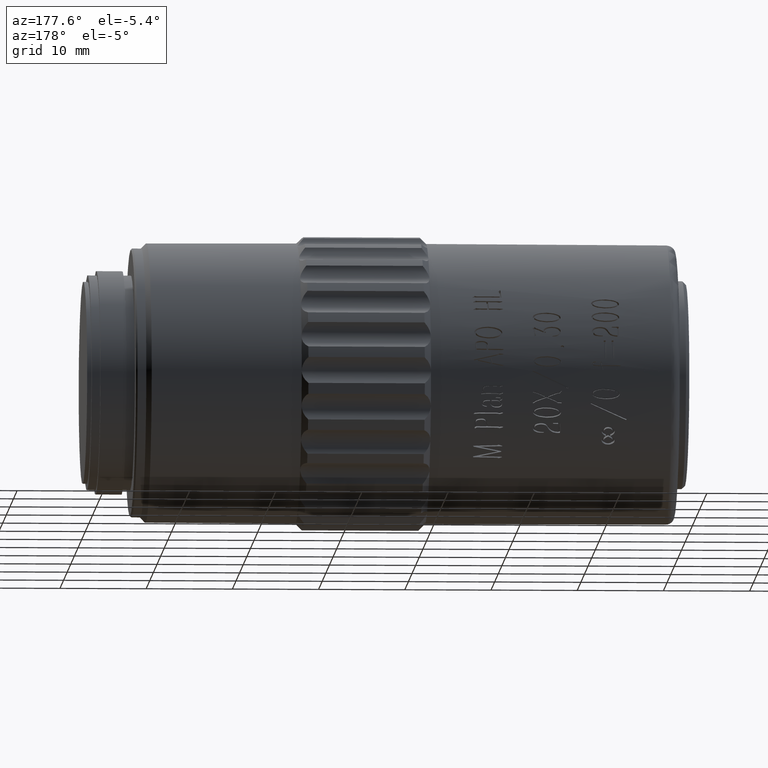
[diagram: clean part render]
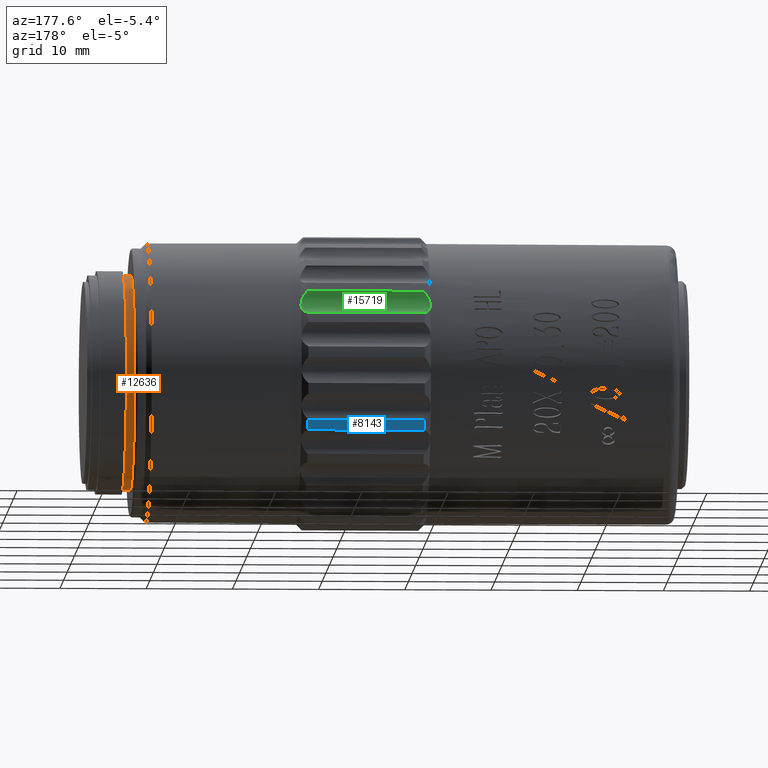
[diagram: same view with three faces highlighted in distinct colors, each labeled with its STEP entity id]
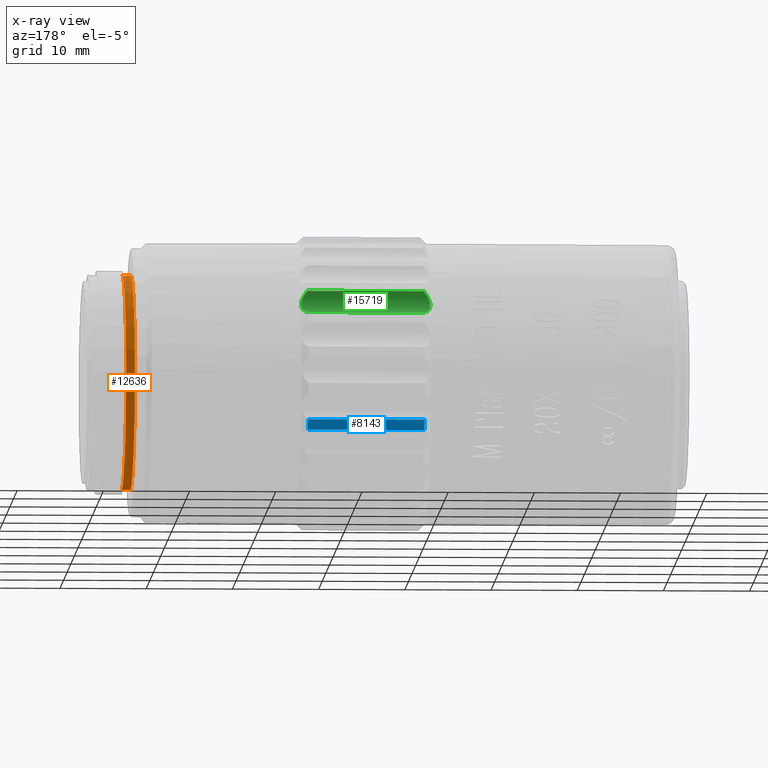
[diagram: x-ray of the same camera — body ghosted, the three highlighted faces saturated]
A machine part, auxiliary view with three faces highlighted in distinct colors.
The next image is the same camera in x-ray (body ghosted, the three faces saturated) — at least one of them is partly hidden behind the body in this view.
Their STEP definitions:

[orange] entity #12636 — the highlighted cylindrical surface (partial cylindrical patch) has radius 12.5 mm, axis along (-1, -0, -0).
#1095 = VECTOR ( 'NONE', #37534, 1000.000000000000000 ) ;
#3508 = DIRECTION ( 'NONE',  ( 0.000000000000000000, 0.000000000000000000, 1.000000000000000000 ) ) ;
#4817 = DIRECTION ( 'NONE',  ( 0.000000000000000000, 0.000000000000000000, 1.000000000000000000 ) ) ;
#6011 = VERTEX_POINT ( 'NONE', #8881 ) ;
#8704 = CIRCLE ( 'NONE', #37078, 12.50000000000000000 ) ;
#8881 = CARTESIAN_POINT ( 'NONE',  ( 64.34999999999999432, 1.530808498934191521E-15, -12.50000000000000000 ) ) ;
#9200 = LINE ( 'NONE', #26135, #16306 ) ;
#11883 = VERTEX_POINT ( 'NONE', #26259 ) ;
#12636 = ADVANCED_FACE ( 'NONE', ( #34538 ), #43140, .T. ) ;
#16306 = VECTOR ( 'NONE', #26406, 1000.000000000000000 ) ;
#17032 = DIRECTION ( 'NONE',  ( -1.000000000000000000, -0.000000000000000000, -0.000000000000000000 ) ) ;
#20282 = EDGE_CURVE ( 'NONE', #11883, #49227, #8704, .T. ) ;
#24292 = CARTESIAN_POINT ( 'NONE',  ( 65.34999999999999432, 1.530808498934191521E-15, -12.50000000000000000 ) ) ;
#24724 = ORIENTED_EDGE ( 'NONE', *, *, #50619, .T. ) ;
#25632 = EDGE_LOOP ( 'NONE', ( #47803, #24724, #36643, #41115 ) ) ;
#26135 = CARTESIAN_POINT ( 'NONE',  ( 0.000000000000000000, 0.000000000000000000, 12.50000000000000000 ) ) ;
#26259 = CARTESIAN_POINT ( 'NONE',  ( 65.34999999999999432, 0.000000000000000000, 12.50000000000000000 ) ) ;
#26406 = DIRECTION ( 'NONE',  ( -1.000000000000000000, -0.000000000000000000, -0.000000000000000000 ) ) ;
#28765 = CARTESIAN_POINT ( 'NONE',  ( 65.34999999999999432, 0.000000000000000000, 0.000000000000000000 ) ) ;
#28857 = AXIS2_PLACEMENT_3D ( 'NONE', #35344, #35077, #34803 ) ;
#28941 = LINE ( 'NONE', #46136, #1095 ) ;
#30342 = AXIS2_PLACEMENT_3D ( 'NONE', #45926, #17032, #4817 ) ;
#31416 = EDGE_CURVE ( 'NONE', #11883, #38383, #9200, .T. ) ;
#34538 = FACE_OUTER_BOUND ( 'NONE', #25632, .T. ) ;
#34803 = DIRECTION ( 'NONE',  ( 0.000000000000000000, 0.000000000000000000, 1.000000000000000000 ) ) ;
#35077 = DIRECTION ( 'NONE',  ( -1.000000000000000000, -0.000000000000000000, -0.000000000000000000 ) ) ;
#35344 = CARTESIAN_POINT ( 'NONE',  ( 0.000000000000000000, 0.000000000000000000, 0.000000000000000000 ) ) ;
#36643 = ORIENTED_EDGE ( 'NONE', *, *, #50397, .F. ) ;
#37078 = AXIS2_PLACEMENT_3D ( 'NONE', #28765, #37632, #3508 ) ;
#37254 = CARTESIAN_POINT ( 'NONE',  ( 64.34999999999999432, 0.000000000000000000, 12.50000000000000000 ) ) ;
#37534 = DIRECTION ( 'NONE',  ( -1.000000000000000000, -0.000000000000000000, -0.000000000000000000 ) ) ;
#37632 = DIRECTION ( 'NONE',  ( -1.000000000000000000, -0.000000000000000000, -0.000000000000000000 ) ) ;
#38383 = VERTEX_POINT ( 'NONE', #37254 ) ;
#41115 = ORIENTED_EDGE ( 'NONE', *, *, #31416, .F. ) ;
#43140 = CYLINDRICAL_SURFACE ( 'NONE', #28857, 12.50000000000000000 ) ;
#45926 = CARTESIAN_POINT ( 'NONE',  ( 64.34999999999999432, 0.000000000000000000, 0.000000000000000000 ) ) ;
#46136 = CARTESIAN_POINT ( 'NONE',  ( 0.000000000000000000, 1.530808498934191521E-15, -12.50000000000000000 ) ) ;
#46304 = CIRCLE ( 'NONE', #30342, 12.50000000000000000 ) ;
#47803 = ORIENTED_EDGE ( 'NONE', *, *, #20282, .T. ) ;
#49227 = VERTEX_POINT ( 'NONE', #24292 ) ;
#50397 = EDGE_CURVE ( 'NONE', #38383, #6011, #46304, .T. ) ;
#50619 = EDGE_CURVE ( 'NONE', #49227, #6011, #28941, .T. ) ;

[blue] entity #8143 — the highlighted cylindrical surface (partial cylindrical patch) has radius 17 mm, axis along (-1, -0, -0).
#1263 = CARTESIAN_POINT ( 'NONE',  ( 0.000000000000000000, 0.000000000000000000, 0.000000000000000000 ) ) ;
#3140 = CIRCLE ( 'NONE', #34163, 17.00000000000000000 ) ;
#5213 = EDGE_CURVE ( 'NONE', #10623, #9184, #49495, .T. ) ;
#8143 = ADVANCED_FACE ( 'NONE', ( #43193 ), #39285, .T. ) ;
#8567 = VECTOR ( 'NONE', #15375, 1000.000000000000000 ) ;
#8874 = DIRECTION ( 'NONE',  ( 0.000000000000000000, 0.000000000000000000, -1.000000000000000000 ) ) ;
#9184 = VERTEX_POINT ( 'NONE', #13002 ) ;
#9412 = CARTESIAN_POINT ( 'NONE',  ( 44.40000000000000568, 0.000000000000000000, 0.000000000000000000 ) ) ;
#10623 = VERTEX_POINT ( 'NONE', #35854 ) ;
#13002 = CARTESIAN_POINT ( 'NONE',  ( 44.40000000000000568, 15.56390251696602434, -6.838489485433075110 ) ) ;
#13030 = DIRECTION ( 'NONE',  ( 0.000000000000000000, 0.000000000000000000, 1.000000000000000000 ) ) ;
#13570 = CARTESIAN_POINT ( 'NONE',  ( 30.89999999999995595, 0.000000000000000000, 0.000000000000000000 ) ) ;
#15375 = DIRECTION ( 'NONE',  ( 1.000000000000000000, 0.000000000000000000, 0.000000000000000000 ) ) ;
#16135 = EDGE_CURVE ( 'NONE', #30337, #9184, #3140, .T. ) ;
#18188 = DIRECTION ( 'NONE',  ( 0.000000000000000000, 0.000000000000000000, 1.000000000000000000 ) ) ;
#18966 = AXIS2_PLACEMENT_3D ( 'NONE', #13570, #26345, #8874 ) ;
#19181 = ORIENTED_EDGE ( 'NONE', *, *, #5213, .F. ) ;
#19207 = ORIENTED_EDGE ( 'NONE', *, *, #32280, .T. ) ;
#25167 = CARTESIAN_POINT ( 'NONE',  ( 37.64999999999998437, 16.02686484129037581, -5.669180131113363608 ) ) ;
#26345 = DIRECTION ( 'NONE',  ( 1.000000000000000000, 0.000000000000000000, 0.000000000000000000 ) ) ;
#28102 = EDGE_LOOP ( 'NONE', ( #52359, #19181, #19207, #32403 ) ) ;
#30337 = VERTEX_POINT ( 'NONE', #32584 ) ;
#32280 = EDGE_CURVE ( 'NONE', #10623, #46850, #33204, .T. ) ;
#32403 = ORIENTED_EDGE ( 'NONE', *, *, #50985, .F. ) ;
#32584 = CARTESIAN_POINT ( 'NONE',  ( 44.40000000000000568, 16.02686484129037581, -5.669180131113363608 ) ) ;
#32958 = LINE ( 'NONE', #25167, #41884 ) ;
#33204 = CIRCLE ( 'NONE', #18966, 17.00000000000000000 ) ;
#33513 = DIRECTION ( 'NONE',  ( -1.000000000000000000, -0.000000000000000000, -0.000000000000000000 ) ) ;
#34163 = AXIS2_PLACEMENT_3D ( 'NONE', #9412, #51036, #13030 ) ;
#34482 = AXIS2_PLACEMENT_3D ( 'NONE', #1263, #46526, #18188 ) ;
#35854 = CARTESIAN_POINT ( 'NONE',  ( 30.89999999999995595, 15.56390251696602434, -6.838489485433075110 ) ) ;
#36194 = CARTESIAN_POINT ( 'NONE',  ( 37.64999999999998437, 15.56390251696602434, -6.838489485433075110 ) ) ;
#39285 = CYLINDRICAL_SURFACE ( 'NONE', #34482, 17.00000000000000000 ) ;
#41884 = VECTOR ( 'NONE', #33513, 1000.000000000000000 ) ;
#43193 = FACE_OUTER_BOUND ( 'NONE', #28102, .T. ) ;
#46526 = DIRECTION ( 'NONE',  ( -1.000000000000000000, -0.000000000000000000, -0.000000000000000000 ) ) ;
#46850 = VERTEX_POINT ( 'NONE', #53648 ) ;
#49495 = LINE ( 'NONE', #36194, #8567 ) ;
#50985 = EDGE_CURVE ( 'NONE', #30337, #46850, #32958, .T. ) ;
#51036 = DIRECTION ( 'NONE',  ( -1.000000000000000000, -0.000000000000000000, -0.000000000000000000 ) ) ;
#52359 = ORIENTED_EDGE ( 'NONE', *, *, #16135, .T. ) ;
#53648 = CARTESIAN_POINT ( 'NONE',  ( 30.89999999999995950, 16.02686484129037581, -5.669180131113361831 ) ) ;

[green] entity #15719 — the highlighted cylindrical surface (edge-blend (fillet) strip) has radius 2 mm, axis along (-1, -0, -0).
#721 = ORIENTED_EDGE ( 'NONE', *, *, #39495, .T. ) ;
#968 = CARTESIAN_POINT ( 'NONE',  ( 30.25172196527415025, 14.61598692441996405, 7.333056607371934099 ) ) ;
#1455 = VERTEX_POINT ( 'NONE', #33199 ) ;
#1488 = CARTESIAN_POINT ( 'NONE',  ( 30.44838355598266944, 13.98820631081956023, 8.842761138807361476 ) ) ;
#3236 = CARTESIAN_POINT ( 'NONE',  ( 44.78236023278924449, 13.98168566391420953, 8.984426704125711538 ) ) ;
#3251 = VECTOR ( 'NONE', #18827, 1000.000000000000000 ) ;
#4084 = ORIENTED_EDGE ( 'NONE', *, *, #51285, .F. ) ;
#4149 = VECTOR ( 'NONE', #22940, 1000.000000000000000 ) ;
#4319 = EDGE_LOOP ( 'NONE', ( #4457, #721, #12654, #43930, #51743, #4084 ) ) ;
#4457 = ORIENTED_EDGE ( 'NONE', *, *, #5509, .T. ) ;
#4588 = CARTESIAN_POINT ( 'NONE',  ( 30.89999999999995595, 15.56390251696572768, 6.838489485433750126 ) ) ;
#4784 = VERTEX_POINT ( 'NONE', #54251 ) ;
#5509 = EDGE_CURVE ( 'NONE', #46188, #16490, #10176, .T. ) ;
#6182 = CARTESIAN_POINT ( 'NONE',  ( 30.53024158241526820, 13.99723072883888442, 8.980637347960309214 ) ) ;
#7846 = CARTESIAN_POINT ( 'NONE',  ( 45.14999999999937330, 14.23998355071341493, 7.828497204153050504 ) ) ;
#8747 = CARTESIAN_POINT ( 'NONE',  ( 30.80006460241129318, 15.44309783918687451, 6.864999794460682203 ) ) ;
#8926 = CARTESIAN_POINT ( 'NONE',  ( 44.49993512940091733, 15.44309816337967156, 6.864999723317317226 ) ) ;
#9013 = CARTESIAN_POINT ( 'NONE',  ( 30.44838345473214858, 14.96144577509835116, 7.072444934390988536 ) ) ;
#9609 = CARTESIAN_POINT ( 'NONE',  ( 69.85099999999999909, 15.99259691080115076, 8.792004552356470271 ) ) ;
#10176 = LINE ( 'NONE', #27120, #4149 ) ;
#10987 = CARTESIAN_POINT ( 'NONE',  ( 45.04856986107691341, 14.02331324929055256, 8.410583665831602218 ) ) ;
#12009 = CARTESIAN_POINT ( 'NONE',  ( 44.40000000000000568, 15.56390251696572768, 6.838489485433750126 ) ) ;
#12654 = ORIENTED_EDGE ( 'NONE', *, *, #17746, .F. ) ;
#12826 = CARTESIAN_POINT ( 'NONE',  ( 44.99040941542482130, 14.72887031556890847, 7.235356550762840122 ) ) ;
#14137 = CARTESIAN_POINT ( 'NONE',  ( 45.14999999999937330, 14.23998355071341493, 7.828497204153050504 ) ) ;
#14232 = CARTESIAN_POINT ( 'NONE',  ( 30.70560827549601512, 14.03872687638715178, 9.238614471989940569 ) ) ;
#14671 = LINE ( 'NONE', #31609, #3251 ) ;
#15719 = ADVANCED_FACE ( 'NONE', ( #52853 ), #30720, .F. ) ;
#15723 = CARTESIAN_POINT ( 'NONE',  ( 45.14999999999937330, 14.23998355071341493, 7.828497204153050504 ) ) ;
#16490 = VERTEX_POINT ( 'NONE', #29098 ) ;
#17248 = CARTESIAN_POINT ( 'NONE',  ( 44.85161644401730996, 14.96144592307057408, 7.072444856136250735 ) ) ;
#17746 = EDGE_CURVE ( 'NONE', #1455, #4784, #29088, .T. ) ;
#18140 = CARTESIAN_POINT ( 'NONE',  ( 30.15000000000059899, 14.16358039854744000, 7.967474022013962376 ) ) ;
#18179 = AXIS2_PLACEMENT_3D ( 'NONE', #9609, #26545, #52045 ) ;
#18827 = DIRECTION ( 'NONE',  ( 1.000000000000000000, 0.000000000000000000, 0.000000000000000000 ) ) ;
#20620 = CARTESIAN_POINT ( 'NONE',  ( 44.40000000000000568, 14.11348364383507459, 9.476791621387478770 ) ) ;
#20975 = CARTESIAN_POINT ( 'NONE',  ( 30.70560791303378778, 15.32274574458810079, 6.902992129051550130 ) ) ;
#22289 = CARTESIAN_POINT ( 'NONE',  ( 30.17166185667321088, 14.10433124392908333, 8.115220355231823390 ) ) ;
#22940 = DIRECTION ( 'NONE',  ( -1.000000000000000000, -0.000000000000000000, -0.000000000000000000 ) ) ;
#23491 = CARTESIAN_POINT ( 'NONE',  ( 44.59987124278716664, 14.02878947598808601, 9.244383707112556081 ) ) ;
#23765 = CARTESIAN_POINT ( 'NONE',  ( 44.40000000000000568, 14.11348364383507459, 9.476791621387478770 ) ) ;
#24307 = CARTESIAN_POINT ( 'NONE',  ( 45.12845809732149860, 14.10457814217970274, 8.114549637618098998 ) ) ;
#25406 = CARTESIAN_POINT ( 'NONE',  ( 30.15000000000059543, 14.31638684488099855, 7.689520127992203413 ) ) ;
#25586 = CARTESIAN_POINT ( 'NONE',  ( 45.12833814332676496, 14.40938577328134684, 7.560328226287521325 ) ) ;
#25949 = CARTESIAN_POINT ( 'NONE',  ( 30.17166177108860126, 14.40938553874607031, 7.560328494224916263 ) ) ;
#26545 = DIRECTION ( 'NONE',  ( -1.000000000000000000, -0.000000000000000000, -0.000000000000000000 ) ) ;
#26743 = CARTESIAN_POINT ( 'NONE',  ( 30.80006487059906206, 14.07113676839034433, 9.360588236333272860 ) ) ;
#27024 = EDGE_CURVE ( 'NONE', #1455, #42345, #14671, .T. ) ;
#27120 = CARTESIAN_POINT ( 'NONE',  ( 37.64999999999998437, 15.56390251696572768, 6.838489485433750126 ) ) ;
#27147 = B_SPLINE_CURVE_WITH_KNOTS ( 'NONE', 3,
 ( #15723, #41257, #24307, #10987, #45143, #3236, #23491, #23765 ),
 .UNSPECIFIED., .F., .F.,
 ( 4, 2, 2, 4 ),
 ( 0.001887648531582153313, 0.002358882472447882978, 0.002830116413313612210, 0.003772584295045071107 ),
 .UNSPECIFIED. ) ;
#27509 = VERTEX_POINT ( 'NONE', #14137 ) ;
#27839 = CARTESIAN_POINT ( 'NONE',  ( 30.30959058457517941, 14.00113696162572019, 8.559098607406763648 ) ) ;
#28950 = CARTESIAN_POINT ( 'NONE',  ( 44.59439172450396427, 15.32274621940829995, 6.902991957656132271 ) ) ;
#29088 = B_SPLINE_CURVE_WITH_KNOTS ( 'NONE', 3,
 ( #35606, #26743, #14232, #6182, #1488, #27839, #44766, #22289, #18140, #52776 ),
 .UNSPECIFIED., .F., .F.,
 ( 4, 2, 2, 2, 4 ),
 ( 3.147481219582943737E-07, 0.0004721481939869839536, 0.0009439816398520096876, 0.001415815085717035205, 0.001887648531582060939 ),
 .UNSPECIFIED. ) ;
#29098 = CARTESIAN_POINT ( 'NONE',  ( 30.89999999999995595, 15.56390251696572768, 6.838489485433750126 ) ) ;
#30720 = CYLINDRICAL_SURFACE ( 'NONE', #18179, 2.000000000000000000 ) ;
#31212 = CARTESIAN_POINT ( 'NONE',  ( 44.40000000000000568, 15.56390251696572768, 6.838489485433750126 ) ) ;
#31609 = CARTESIAN_POINT ( 'NONE',  ( 37.64999999999998437, 14.11348364383507459, 9.476791621387478770 ) ) ;
#33199 = CARTESIAN_POINT ( 'NONE',  ( 30.89999999999995595, 14.11348364383507459, 9.476791621387478770 ) ) ;
#34469 = CARTESIAN_POINT ( 'NONE',  ( 44.76975841758470409, 15.08269418170461051, 7.006186657027089204 ) ) ;
#35606 = CARTESIAN_POINT ( 'NONE',  ( 30.89999999999995595, 14.11348364383507459, 9.476791621387478770 ) ) ;
#38038 = B_SPLINE_CURVE_WITH_KNOTS ( 'NONE', 3,
 ( #12009, #8926, #28950, #34469, #17248, #12826, #51097, #25586, #45874, #7846 ),
 .UNSPECIFIED., .F., .F.,
 ( 4, 2, 2, 2, 4 ),
 ( 3.147481219585776003E-07, 0.0004721481939870072640, 0.0009439816398520558746, 0.001415815085717104594, 0.001887648531582153313 ),
 .UNSPECIFIED. ) ;
#39495 = EDGE_CURVE ( 'NONE', #16490, #4784, #40097, .T. ) ;
#40097 = B_SPLINE_CURVE_WITH_KNOTS ( 'NONE', 3,
 ( #4588, #8747, #20975, #47043, #9013, #43168, #968, #25949, #25406, #47308 ),
 .UNSPECIFIED., .F., .F.,
 ( 4, 2, 2, 2, 4 ),
 ( 2.603831340106894956E-07, 0.0004720938658602604246, 0.0009439273485865101385, 0.001415760831312759798, 0.001887594314039009458 ),
 .UNSPECIFIED. ) ;
#40564 = EDGE_CURVE ( 'NONE', #27509, #42345, #27147, .T. ) ;
#41257 = CARTESIAN_POINT ( 'NONE',  ( 45.14999999999938041, 14.16367747532762422, 7.967297440006334774 ) ) ;
#42345 = VERTEX_POINT ( 'NONE', #20620 ) ;
#43168 = CARTESIAN_POINT ( 'NONE',  ( 30.30959039939993005, 14.72886998357704691, 7.235356808707480880 ) ) ;
#43930 = ORIENTED_EDGE ( 'NONE', *, *, #27024, .T. ) ;
#44766 = CARTESIAN_POINT ( 'NONE',  ( 30.25172192506990143, 14.02314195659451990, 8.411437526043878066 ) ) ;
#45143 = CARTESIAN_POINT ( 'NONE',  ( 44.99066348792045744, 14.00119490726329197, 8.558518702373294929 ) ) ;
#45874 = CARTESIAN_POINT ( 'NONE',  ( 45.14999999999936620, 14.31638670287935255, 7.689520386292223009 ) ) ;
#46188 = VERTEX_POINT ( 'NONE', #31212 ) ;
#47043 = CARTESIAN_POINT ( 'NONE',  ( 30.53024132713718686, 15.08269381092622829, 7.006186849141682771 ) ) ;
#47308 = CARTESIAN_POINT ( 'NONE',  ( 30.14999999999998792, 14.23998355071285538, 7.828497204152746747 ) ) ;
#51097 = CARTESIAN_POINT ( 'NONE',  ( 45.04827807493009573, 14.61598680699205488, 7.333056746485348221 ) ) ;
#51285 = EDGE_CURVE ( 'NONE', #46188, #27509, #38038, .T. ) ;
#51743 = ORIENTED_EDGE ( 'NONE', *, *, #40564, .F. ) ;
#52045 = DIRECTION ( 'NONE',  ( 0.000000000000000000, 0.000000000000000000, 1.000000000000000000 ) ) ;
#52776 = CARTESIAN_POINT ( 'NONE',  ( 30.14999999999998792, 14.23998355071285538, 7.828497204152746747 ) ) ;
#52853 = FACE_OUTER_BOUND ( 'NONE', #4319, .T. ) ;
#54251 = CARTESIAN_POINT ( 'NONE',  ( 30.14999999999998792, 14.23998355071285538, 7.828497204152746747 ) ) ;